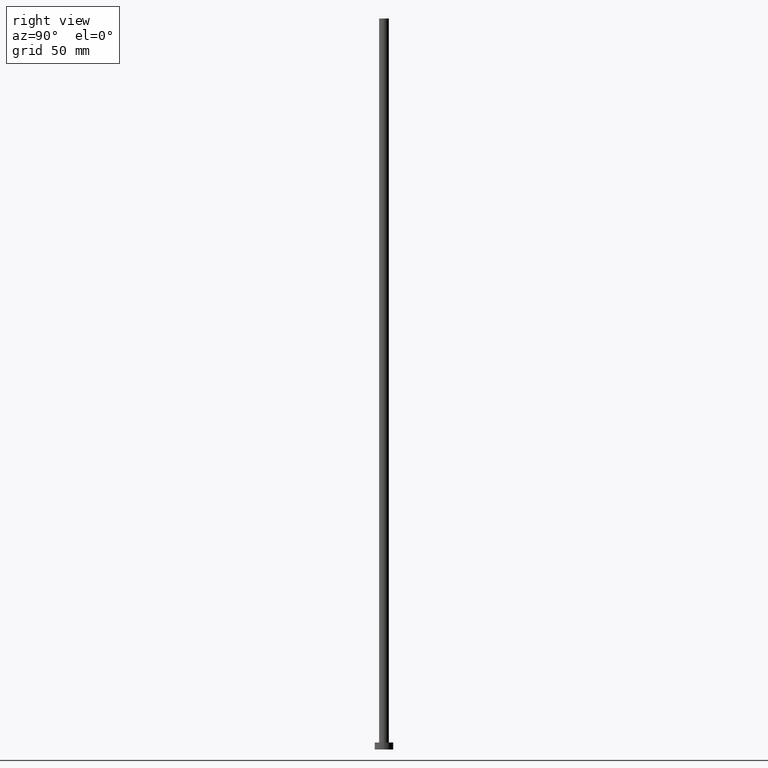
[diagram: clean part render]
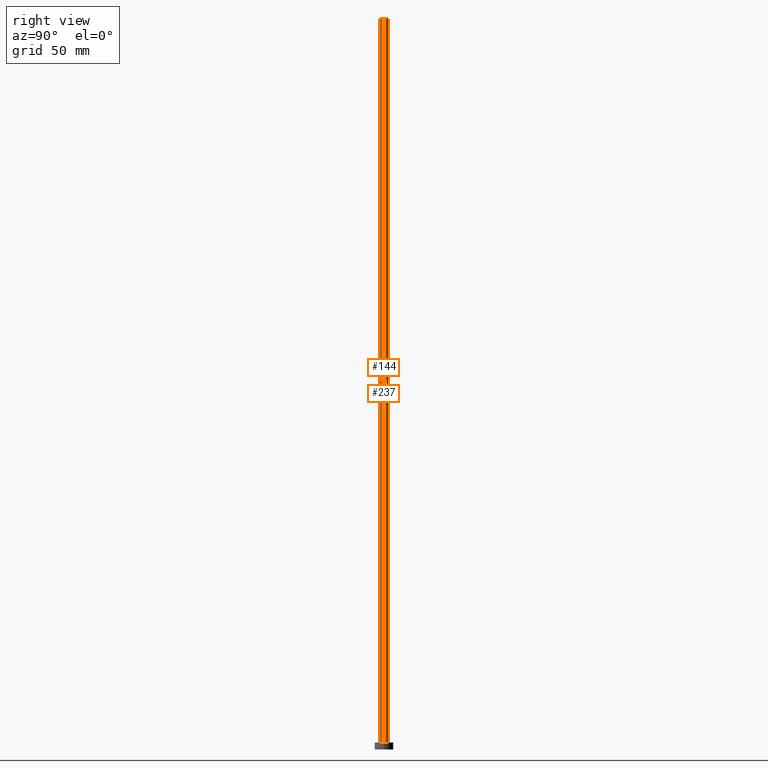
[diagram: same view with one multi-face feature highlighted, each face labeled with its STEP entity id]
A machine part, right view. The highlighted faces form ONE feature: a constant-radius fillet chain: 2 tangent blend faces with common blend radius 2.1 mm. The faces share edges in the B-rep.
Their STEP definitions:
[1] entity #144 (Cylinder):
#5 = FACE_OUTER_BOUND ( 'NONE', #53, .T. ) ;
#7 = CIRCLE ( 'NONE', #28, 2.100000000000000089 ) ;
#8 = EDGE_CURVE ( 'NONE', #78, #57, #192, .T. ) ;
#18 = DIRECTION ( 'NONE',  ( -1.000000000000000000, 0.000000000000000000, 0.000000000000000000 ) ) ;
#28 = AXIS2_PLACEMENT_3D ( 'NONE', #50, #46, #86 ) ;
#33 = LINE ( 'NONE', #108, #45 ) ;
#35 = VERTEX_POINT ( 'NONE', #132 ) ;
#39 = CARTESIAN_POINT ( 'NONE',  ( -2.100000000000000089, 0.000000000000000000, 3.000000000000000000 ) ) ;
#41 = DIRECTION ( 'NONE',  ( -0.000000000000000000, -0.000000000000000000, -1.000000000000000000 ) ) ;
#44 = CIRCLE ( 'NONE', #187, 2.100000000000000089 ) ;
#45 = VECTOR ( 'NONE', #191, 1000.000000000000000 ) ;
#46 = DIRECTION ( 'NONE',  ( 0.000000000000000000, 0.000000000000000000, 1.000000000000000000 ) ) ;
#47 = CYLINDRICAL_SURFACE ( 'NONE', #145, 2.100000000000000089 ) ;
#48 = DIRECTION ( 'NONE',  ( 1.000000000000000000, 0.000000000000000000, 0.000000000000000000 ) ) ;
#50 = CARTESIAN_POINT ( 'NONE',  ( 0.000000000000000000, 0.000000000000000000, 3.000000000000000000 ) ) ;
#53 = EDGE_LOOP ( 'NONE', ( #193, #213, #177, #190 ) ) ;
#57 = VERTEX_POINT ( 'NONE', #39 ) ;
#70 = DIRECTION ( 'NONE',  ( -0.000000000000000000, -0.000000000000000000, -1.000000000000000000 ) ) ;
#71 = EDGE_CURVE ( 'NONE', #35, #109, #33, .T. ) ;
#78 = VERTEX_POINT ( 'NONE', #112 ) ;
#86 = DIRECTION ( 'NONE',  ( 1.000000000000000000, 0.000000000000000000, 0.000000000000000000 ) ) ;
#108 = CARTESIAN_POINT ( 'NONE',  ( 2.100000000000000089, 2.571758278209441957E-16, 315.0000000000000000 ) ) ;
#109 = VERTEX_POINT ( 'NONE', #142 ) ;
#112 = CARTESIAN_POINT ( 'NONE',  ( -2.100000000000000089, 0.000000000000000000, 315.0000000000000000 ) ) ;
#121 = DIRECTION ( 'NONE',  ( 0.000000000000000000, 0.000000000000000000, 1.000000000000000000 ) ) ;
#131 = EDGE_CURVE ( 'NONE', #57, #109, #7, .T. ) ;
#132 = CARTESIAN_POINT ( 'NONE',  ( 2.100000000000000089, 2.571758278209441957E-16, 315.0000000000000000 ) ) ;
#142 = CARTESIAN_POINT ( 'NONE',  ( 2.100000000000000089, 2.571758278209441957E-16, 3.000000000000000000 ) ) ;
#144 = ADVANCED_FACE ( 'NONE', ( #5 ), #47, .T. ) ;
#145 = AXIS2_PLACEMENT_3D ( 'NONE', #162, #70, #18 ) ;
#162 = CARTESIAN_POINT ( 'NONE',  ( 0.000000000000000000, 0.000000000000000000, 315.0000000000000000 ) ) ;
#173 = CARTESIAN_POINT ( 'NONE',  ( -2.100000000000000089, 0.000000000000000000, 315.0000000000000000 ) ) ;
#176 = VECTOR ( 'NONE', #41, 1000.000000000000000 ) ;
#177 = ORIENTED_EDGE ( 'NONE', *, *, #8, .T. ) ;
#187 = AXIS2_PLACEMENT_3D ( 'NONE', #255, #121, #48 ) ;
#189 = EDGE_CURVE ( 'NONE', #78, #35, #44, .T. ) ;
#190 = ORIENTED_EDGE ( 'NONE', *, *, #131, .T. ) ;
#191 = DIRECTION ( 'NONE',  ( -0.000000000000000000, -0.000000000000000000, -1.000000000000000000 ) ) ;
#192 = LINE ( 'NONE', #173, #176 ) ;
#193 = ORIENTED_EDGE ( 'NONE', *, *, #71, .F. ) ;
#213 = ORIENTED_EDGE ( 'NONE', *, *, #189, .F. ) ;
#255 = CARTESIAN_POINT ( 'NONE',  ( 0.000000000000000000, 0.000000000000000000, 315.0000000000000000 ) ) ;
[2] entity #237 (Cylinder):
#1 = CARTESIAN_POINT ( 'NONE',  ( 0.000000000000000000, 0.000000000000000000, 315.0000000000000000 ) ) ;
#8 = EDGE_CURVE ( 'NONE', #78, #57, #192, .T. ) ;
#11 = ORIENTED_EDGE ( 'NONE', *, *, #158, .F. ) ;
#29 = AXIS2_PLACEMENT_3D ( 'NONE', #232, #238, #89 ) ;
#33 = LINE ( 'NONE', #108, #45 ) ;
#35 = VERTEX_POINT ( 'NONE', #132 ) ;
#39 = CARTESIAN_POINT ( 'NONE',  ( -2.100000000000000089, 0.000000000000000000, 3.000000000000000000 ) ) ;
#41 = DIRECTION ( 'NONE',  ( -0.000000000000000000, -0.000000000000000000, -1.000000000000000000 ) ) ;
#45 = VECTOR ( 'NONE', #191, 1000.000000000000000 ) ;
#55 = ORIENTED_EDGE ( 'NONE', *, *, #249, .T. ) ;
#57 = VERTEX_POINT ( 'NONE', #39 ) ;
#71 = EDGE_CURVE ( 'NONE', #35, #109, #33, .T. ) ;
#78 = VERTEX_POINT ( 'NONE', #112 ) ;
#85 = DIRECTION ( 'NONE',  ( 0.000000000000000000, 0.000000000000000000, 1.000000000000000000 ) ) ;
#88 = CARTESIAN_POINT ( 'NONE',  ( 0.000000000000000000, 0.000000000000000000, 3.000000000000000000 ) ) ;
#89 = DIRECTION ( 'NONE',  ( -1.000000000000000000, 0.000000000000000000, 0.000000000000000000 ) ) ;
#104 = DIRECTION ( 'NONE',  ( 0.000000000000000000, 0.000000000000000000, 1.000000000000000000 ) ) ;
#108 = CARTESIAN_POINT ( 'NONE',  ( 2.100000000000000089, 2.571758278209441957E-16, 315.0000000000000000 ) ) ;
#109 = VERTEX_POINT ( 'NONE', #142 ) ;
#112 = CARTESIAN_POINT ( 'NONE',  ( -2.100000000000000089, 0.000000000000000000, 315.0000000000000000 ) ) ;
#120 = AXIS2_PLACEMENT_3D ( 'NONE', #88, #104, #221 ) ;
#130 = EDGE_LOOP ( 'NONE', ( #11, #147, #55, #224 ) ) ;
#132 = CARTESIAN_POINT ( 'NONE',  ( 2.100000000000000089, 2.571758278209441957E-16, 315.0000000000000000 ) ) ;
#137 = FACE_OUTER_BOUND ( 'NONE', #130, .T. ) ;
#141 = DIRECTION ( 'NONE',  ( 1.000000000000000000, 0.000000000000000000, 0.000000000000000000 ) ) ;
#142 = CARTESIAN_POINT ( 'NONE',  ( 2.100000000000000089, 2.571758278209441957E-16, 3.000000000000000000 ) ) ;
#147 = ORIENTED_EDGE ( 'NONE', *, *, #71, .T. ) ;
#153 = AXIS2_PLACEMENT_3D ( 'NONE', #1, #85, #141 ) ;
#158 = EDGE_CURVE ( 'NONE', #35, #78, #226, .T. ) ;
#173 = CARTESIAN_POINT ( 'NONE',  ( -2.100000000000000089, 0.000000000000000000, 315.0000000000000000 ) ) ;
#176 = VECTOR ( 'NONE', #41, 1000.000000000000000 ) ;
#191 = DIRECTION ( 'NONE',  ( -0.000000000000000000, -0.000000000000000000, -1.000000000000000000 ) ) ;
#192 = LINE ( 'NONE', #173, #176 ) ;
#215 = CYLINDRICAL_SURFACE ( 'NONE', #29, 2.100000000000000089 ) ;
#221 = DIRECTION ( 'NONE',  ( 1.000000000000000000, 0.000000000000000000, 0.000000000000000000 ) ) ;
#224 = ORIENTED_EDGE ( 'NONE', *, *, #8, .F. ) ;
#226 = CIRCLE ( 'NONE', #153, 2.100000000000000089 ) ;
#232 = CARTESIAN_POINT ( 'NONE',  ( 0.000000000000000000, 0.000000000000000000, 315.0000000000000000 ) ) ;
#237 = ADVANCED_FACE ( 'NONE', ( #137 ), #215, .T. ) ;
#238 = DIRECTION ( 'NONE',  ( -0.000000000000000000, -0.000000000000000000, -1.000000000000000000 ) ) ;
#240 = CIRCLE ( 'NONE', #120, 2.100000000000000089 ) ;
#249 = EDGE_CURVE ( 'NONE', #109, #57, #240, .T. ) ;